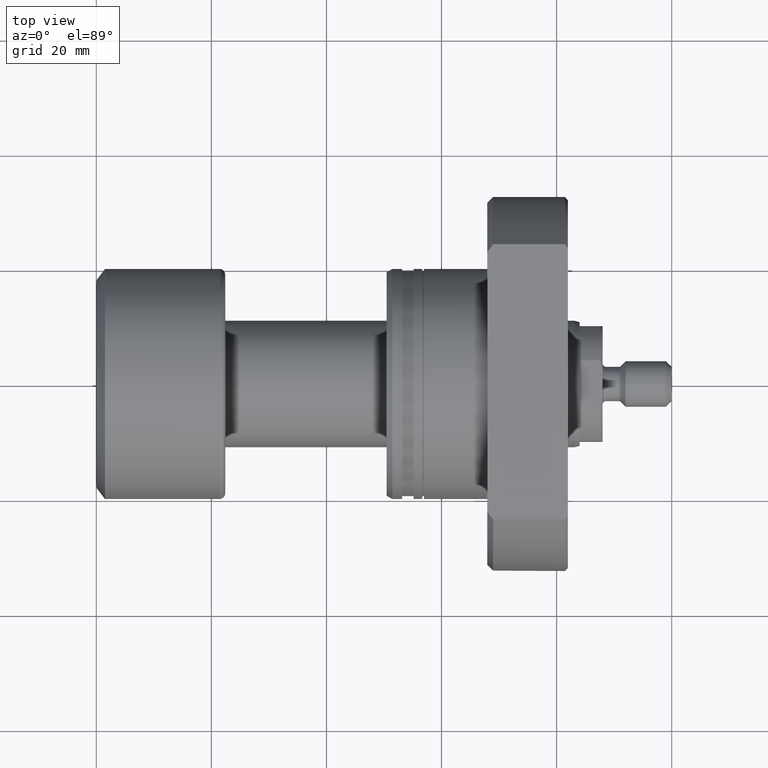
[diagram: clean part render]
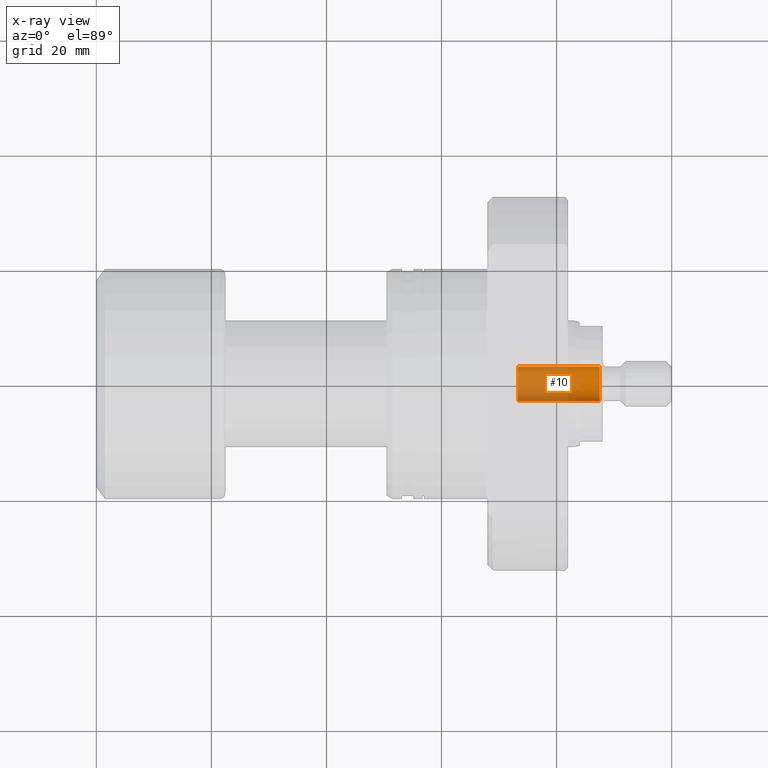
[diagram: x-ray — body ghosted, one internal face saturated and labeled with its STEP entity id]
A machine part, top view, then the same camera in x-ray: the body is ghosted and one INTERNAL B-rep face — a face not visible from any outside direction — is saturated and labeled: STEP entity #10.
In plain terms, the highlighted cylindrical surface (edge-blend (fillet) strip) has radius 3 mm, axis along (1, -0, 0).
Its self-contained STEP definition (entity closure, byte-faithful):
#10 = ADVANCED_FACE ( 'NONE', ( #337 ), #1194, .F. ) ;
#26 = AXIS2_PLACEMENT_3D ( 'NONE', #3217, #75, #891 ) ;
#66 = EDGE_CURVE ( 'NONE', #2763, #1341, #1650, .T. ) ;
#75 = DIRECTION ( 'NONE',  ( 1.000000000000000000, -1.657264799492230625E-14, -0.000000000000000000 ) ) ;
#123 = EDGE_CURVE ( 'NONE', #2802, #2763, #2622, .T. ) ;
#127 = ORIENTED_EDGE ( 'NONE', *, *, #3149, .F. ) ;
#208 = AXIS2_PLACEMENT_3D ( 'NONE', #919, #3463, #361 ) ;
#286 = CARTESIAN_POINT ( 'NONE',  ( 87.50000000000004263, -3.000000000001877165, 3.673940397442726456E-16 ) ) ;
#337 = FACE_OUTER_BOUND ( 'NONE', #1763, .T. ) ;
#361 = DIRECTION ( 'NONE',  ( 1.850371707708330965E-14, 1.000000000000000000, 0.000000000000000000 ) ) ;
#584 = CARTESIAN_POINT ( 'NONE',  ( 87.50000000000014211, 2.999999999998976374, 0.000000000000000000 ) ) ;
#878 = VERTEX_POINT ( 'NONE', #1840 ) ;
#891 = DIRECTION ( 'NONE',  ( 1.850371707708330965E-14, 1.000000000000000000, 0.000000000000000000 ) ) ;
#899 = ORIENTED_EDGE ( 'NONE', *, *, #2095, .F. ) ;
#907 = CIRCLE ( 'NONE', #208, 3.000000000000426770 ) ;
#919 = CARTESIAN_POINT ( 'NONE',  ( 73.29999999999999716, -1.214775098027805124E-12, 0.000000000000000000 ) ) ;
#938 = DIRECTION ( 'NONE',  ( 1.000000000000000000, -1.657264799492230625E-14, -0.000000000000000000 ) ) ;
#1194 = CYLINDRICAL_SURFACE ( 'NONE', #26, 3.000000000000426770 ) ;
#1213 = CARTESIAN_POINT ( 'NONE',  ( 73.29999999999994031, -3.000000000001641354, 3.673940397442581995E-16 ) ) ;
#1237 = DIRECTION ( 'NONE',  ( -1.850371707708330965E-14, -1.000000000000000000, 0.000000000000000000 ) ) ;
#1341 = VERTEX_POINT ( 'NONE', #584 ) ;
#1353 = DIRECTION ( 'NONE',  ( 1.000000000000000000, -1.657264799492230625E-14, -0.000000000000000000 ) ) ;
#1534 = ORIENTED_EDGE ( 'NONE', *, *, #123, .T. ) ;
#1623 = LINE ( 'NONE', #2759, #3358 ) ;
#1650 = CIRCLE ( 'NONE', #2411, 3.000000000000426770 ) ;
#1763 = EDGE_LOOP ( 'NONE', ( #899, #1534, #2662, #127 ) ) ;
#1840 = CARTESIAN_POINT ( 'NONE',  ( 73.30000000000003979, 2.999999999999212186, 0.000000000000000000 ) ) ;
#2095 = EDGE_CURVE ( 'NONE', #2802, #878, #907, .T. ) ;
#2411 = AXIS2_PLACEMENT_3D ( 'NONE', #2604, #2940, #1237 ) ;
#2604 = CARTESIAN_POINT ( 'NONE',  ( 87.50000000000008527, -1.450106699555703523E-12, 0.000000000000000000 ) ) ;
#2622 = LINE ( 'NONE', #1213, #3253 ) ;
#2662 = ORIENTED_EDGE ( 'NONE', *, *, #66, .T. ) ;
#2759 = CARTESIAN_POINT ( 'NONE',  ( 73.30000000000003979, 2.999999999999212186, 0.000000000000000000 ) ) ;
#2763 = VERTEX_POINT ( 'NONE', #286 ) ;
#2802 = VERTEX_POINT ( 'NONE', #3377 ) ;
#2940 = DIRECTION ( 'NONE',  ( 1.000000000000000000, -1.657264799492241669E-14, 0.000000000000000000 ) ) ;
#3149 = EDGE_CURVE ( 'NONE', #878, #1341, #1623, .T. ) ;
#3217 = CARTESIAN_POINT ( 'NONE',  ( 73.29999999999999716, -1.214775098027805124E-12, 0.000000000000000000 ) ) ;
#3253 = VECTOR ( 'NONE', #938, 1000.000000000000000 ) ;
#3358 = VECTOR ( 'NONE', #1353, 1000.000000000000000 ) ;
#3377 = CARTESIAN_POINT ( 'NONE',  ( 73.29999999999994031, -3.000000000001641354, 3.673940397442581995E-16 ) ) ;
#3463 = DIRECTION ( 'NONE',  ( 1.000000000000000000, -1.657264799492230625E-14, 0.000000000000000000 ) ) ;